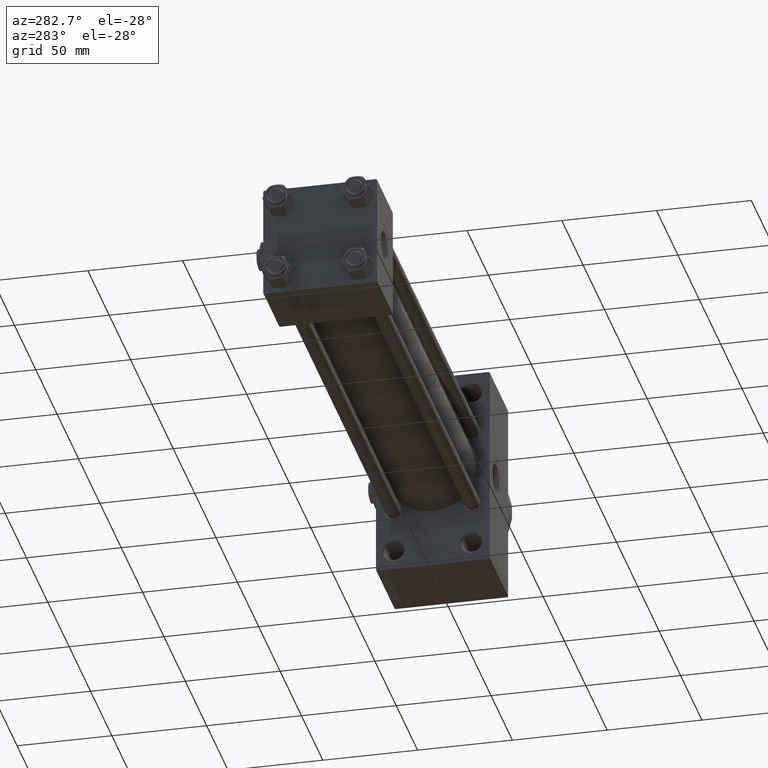
[diagram: clean part render]
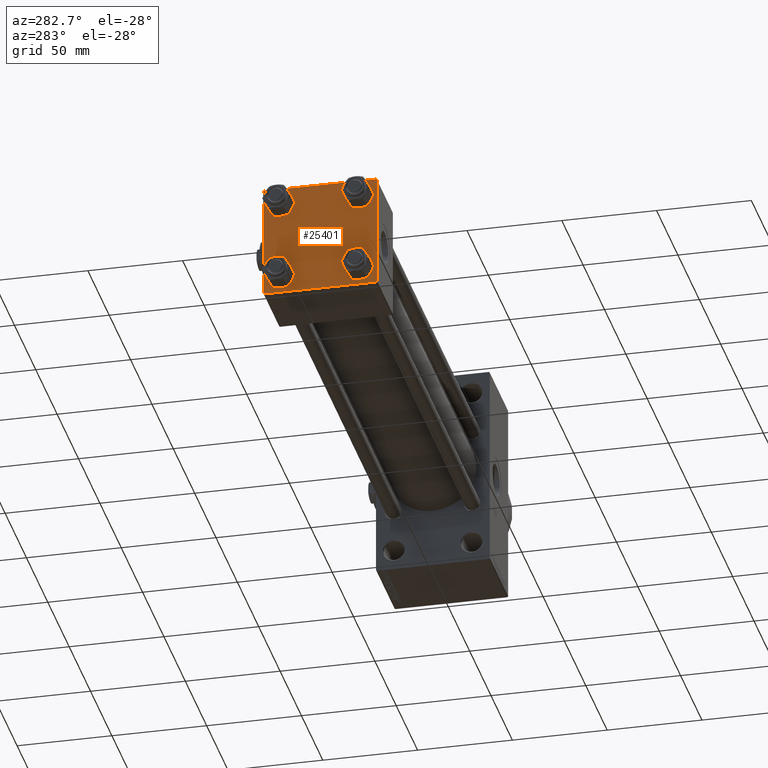
[diagram: same view with one face highlighted and labeled with its STEP entity id]
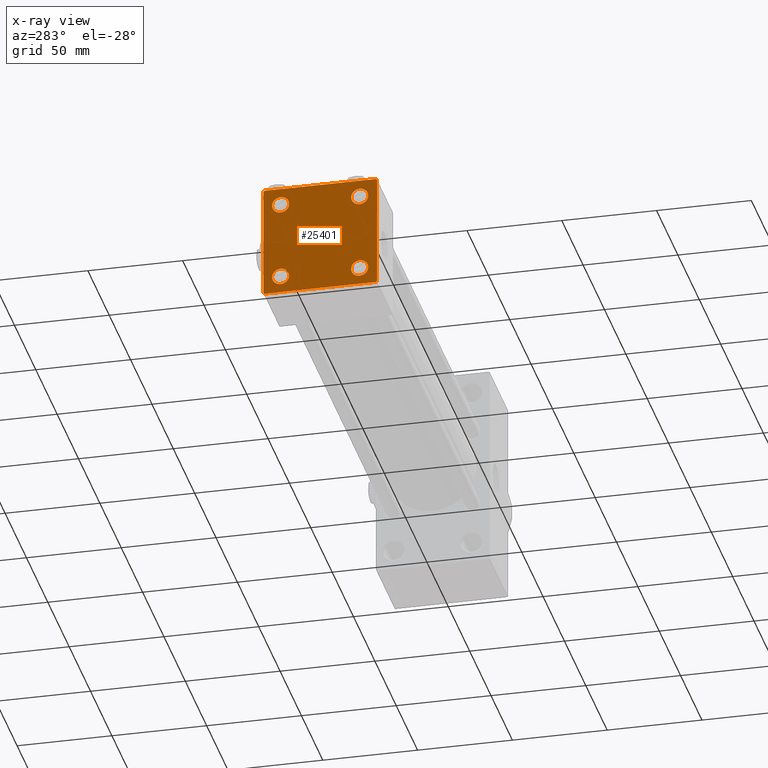
[diagram: x-ray of the same camera — body ghosted, the highlighted face saturated]
A machine part, auxiliary view. The second image highlights one B-rep face of the part: STEP entity #25401.
The next image is the same camera in x-ray: the body ghosted, the highlighted face saturated — about 0% of this face is hidden behind the body in this view.
In plain terms, the highlighted planar face has unit normal (-1, 0, 0).
Its self-contained STEP definition (entity closure, byte-faithful):
#550 = DIRECTION ( 'NONE',  ( 0.000000000000000000, 0.7071067811865474617, -0.7071067811865474617 ) ) ;
#685 = DIRECTION ( 'NONE',  ( 0.000000000000000000, 0.000000000000000000, 1.000000000000000000 ) ) ;
#1146 = DIRECTION ( 'NONE',  ( 1.000000000000000000, -0.000000000000000000, 0.000000000000000000 ) ) ;
#1232 = CARTESIAN_POINT ( 'NONE',  ( 0.000000000000000000, 29.49999999999997868, -30.00000000000000000 ) ) ;
#1278 = EDGE_CURVE ( 'NONE', #26328, #19455, #41671, .T. ) ;
#1809 = DIRECTION ( 'NONE',  ( -1.000000000000000000, 0.000000000000000000, -0.000000000000000000 ) ) ;
#2641 = AXIS2_PLACEMENT_3D ( 'NONE', #4152, #15868, #5134 ) ;
#2792 = LINE ( 'NONE', #18018, #32636 ) ;
#3107 = DIRECTION ( 'NONE',  ( 1.000000000000000000, -0.000000000000000000, 0.000000000000000000 ) ) ;
#3176 = LINE ( 'NONE', #10414, #41726 ) ;
#3518 = VERTEX_POINT ( 'NONE', #25609 ) ;
#4152 = CARTESIAN_POINT ( 'NONE',  ( 0.000000000000000000, -20.84999999999999076, -20.85000000000000497 ) ) ;
#4170 = AXIS2_PLACEMENT_3D ( 'NONE', #25385, #29866, #45062 ) ;
#4403 = EDGE_LOOP ( 'NONE', ( #20660, #16797 ) ) ;
#4476 = CARTESIAN_POINT ( 'NONE',  ( -0.000000000000000000, -29.74999999999999645, 29.74999999999999645 ) ) ;
#4502 = CARTESIAN_POINT ( 'NONE',  ( 0.000000000000000000, 29.49999999999999289, 30.00000000000000000 ) ) ;
#4646 = EDGE_LOOP ( 'NONE', ( #37601, #30730 ) ) ;
#5134 = DIRECTION ( 'NONE',  ( 0.000000000000000000, 0.000000000000000000, 1.000000000000000000 ) ) ;
#5799 = CARTESIAN_POINT ( 'NONE',  ( 0.000000000000000000, -29.50000000000000000, -30.00000000000000711 ) ) ;
#6040 = EDGE_CURVE ( 'NONE', #34753, #33175, #34418, .T. ) ;
#6044 = LINE ( 'NONE', #39717, #8180 ) ;
#6138 = ORIENTED_EDGE ( 'NONE', *, *, #13153, .F. ) ;
#6188 = AXIS2_PLACEMENT_3D ( 'NONE', #22989, #22256, #37473 ) ;
#6557 = CIRCLE ( 'NONE', #4170, 4.500000000000017764 ) ;
#6709 = AXIS2_PLACEMENT_3D ( 'NONE', #40590, #48805, #14661 ) ;
#7130 = ORIENTED_EDGE ( 'NONE', *, *, #46630, .T. ) ;
#7718 = VERTEX_POINT ( 'NONE', #45365 ) ;
#8131 = DIRECTION ( 'NONE',  ( 0.000000000000000000, 0.000000000000000000, 1.000000000000000000 ) ) ;
#8180 = VECTOR ( 'NONE', #32481, 1000.000000000000000 ) ;
#8182 = CARTESIAN_POINT ( 'NONE',  ( 0.000000000000000000, -30.00000000000000000, 29.49999999999999289 ) ) ;
#8534 = PLANE ( 'NONE',  #31089 ) ;
#8624 = VERTEX_POINT ( 'NONE', #4502 ) ;
#8773 = FACE_BOUND ( 'NONE', #4403, .T. ) ;
#9140 = CARTESIAN_POINT ( 'NONE',  ( 0.000000000000000000, 20.84999999999999787, 20.85000000000000142 ) ) ;
#9166 = VECTOR ( 'NONE', #12451, 1000.000000000000114 ) ;
#9526 = FACE_BOUND ( 'NONE', #35846, .T. ) ;
#9920 = CIRCLE ( 'NONE', #47371, 4.500000000000017764 ) ;
#10037 = EDGE_CURVE ( 'NONE', #34172, #7718, #6557, .T. ) ;
#10414 = CARTESIAN_POINT ( 'NONE',  ( 0.000000000000000000, -30.00000000000000000, 29.99999999999999289 ) ) ;
#10511 = EDGE_CURVE ( 'NONE', #8624, #18410, #12248, .T. ) ;
#11000 = DIRECTION ( 'NONE',  ( 0.000000000000000000, -0.7071067811865474617, 0.7071067811865474617 ) ) ;
#11239 = CARTESIAN_POINT ( 'NONE',  ( 0.000000000000000000, 29.99999999999999289, 29.50000000000000000 ) ) ;
#11355 = ORIENTED_EDGE ( 'NONE', *, *, #43964, .T. ) ;
#11502 = CARTESIAN_POINT ( 'NONE',  ( 0.000000000000000000, -29.75000000000001066, -29.75000000000001066 ) ) ;
#11528 = CARTESIAN_POINT ( 'NONE',  ( 0.000000000000000000, 29.74999999999999645, 29.74999999999999645 ) ) ;
#11775 = EDGE_CURVE ( 'NONE', #8624, #23575, #43397, .T. ) ;
#12120 = CARTESIAN_POINT ( 'NONE',  ( 0.000000000000000000, -20.84999999999999076, 20.85000000000000497 ) ) ;
#12248 = LINE ( 'NONE', #11528, #24076 ) ;
#12362 = LINE ( 'NONE', #47523, #28359 ) ;
#12451 = DIRECTION ( 'NONE',  ( -0.000000000000000000, 0.7071067811865474617, 0.7071067811865474617 ) ) ;
#12871 = VERTEX_POINT ( 'NONE', #14219 ) ;
#13153 = EDGE_CURVE ( 'NONE', #20620, #19455, #3176, .T. ) ;
#13542 = VECTOR ( 'NONE', #11000, 1000.000000000000114 ) ;
#14219 = CARTESIAN_POINT ( 'NONE',  ( 0.000000000000000000, 20.84999999999999787, 25.35000000000001918 ) ) ;
#14246 = CARTESIAN_POINT ( 'NONE',  ( 0.000000000000000000, -30.00000000000000000, -29.50000000000001776 ) ) ;
#14661 = DIRECTION ( 'NONE',  ( 0.000000000000000000, 0.000000000000000000, 1.000000000000000000 ) ) ;
#15022 = EDGE_LOOP ( 'NONE', ( #31829, #42260 ) ) ;
#15868 = DIRECTION ( 'NONE',  ( 1.000000000000000000, -0.000000000000000000, 0.000000000000000000 ) ) ;
#16797 = ORIENTED_EDGE ( 'NONE', *, *, #44581, .T. ) ;
#17027 = CARTESIAN_POINT ( 'NONE',  ( 0.000000000000000000, 0.000000000000000000, 0.000000000000000000 ) ) ;
#17367 = DIRECTION ( 'NONE',  ( 0.000000000000000000, 0.000000000000000000, 1.000000000000000000 ) ) ;
#17466 = DIRECTION ( 'NONE',  ( 0.000000000000000000, -1.000000000000000000, -1.156482317317871725E-16 ) ) ;
#17653 = CARTESIAN_POINT ( 'NONE',  ( 0.000000000000000000, -29.49999999999998579, 29.99999999999999289 ) ) ;
#18018 = CARTESIAN_POINT ( 'NONE',  ( 0.000000000000000000, 29.99999999999999289, -30.00000000000000000 ) ) ;
#18326 = DIRECTION ( 'NONE',  ( 0.000000000000000000, 0.000000000000000000, 1.000000000000000000 ) ) ;
#18410 = VERTEX_POINT ( 'NONE', #11239 ) ;
#19455 = VERTEX_POINT ( 'NONE', #14246 ) ;
#20620 = VERTEX_POINT ( 'NONE', #8182 ) ;
#20660 = ORIENTED_EDGE ( 'NONE', *, *, #6040, .T. ) ;
#20855 = EDGE_LOOP ( 'NONE', ( #7130, #11355, #21233, #48439, #6138, #26142, #33757, #38368 ) ) ;
#21233 = ORIENTED_EDGE ( 'NONE', *, *, #25644, .T. ) ;
#21449 = CARTESIAN_POINT ( 'NONE',  ( 0.000000000000000000, 29.99999999999999289, 30.00000000000000000 ) ) ;
#22256 = DIRECTION ( 'NONE',  ( 1.000000000000000000, -0.000000000000000000, 0.000000000000000000 ) ) ;
#22848 = CARTESIAN_POINT ( 'NONE',  ( 0.000000000000000000, 20.84999999999999787, -25.35000000000001918 ) ) ;
#22989 = CARTESIAN_POINT ( 'NONE',  ( 0.000000000000000000, 20.84999999999999787, -20.85000000000000142 ) ) ;
#23329 = VECTOR ( 'NONE', #17466, 1000.000000000000000 ) ;
#23575 = VERTEX_POINT ( 'NONE', #17653 ) ;
#23671 = VERTEX_POINT ( 'NONE', #44805 ) ;
#23755 = DIRECTION ( 'NONE',  ( -0.000000000000000000, 0.000000000000000000, 1.000000000000000000 ) ) ;
#23827 = EDGE_CURVE ( 'NONE', #7718, #34172, #37452, .T. ) ;
#24076 = VECTOR ( 'NONE', #550, 1000.000000000000114 ) ;
#24749 = FACE_BOUND ( 'NONE', #4646, .T. ) ;
#25027 = ORIENTED_EDGE ( 'NONE', *, *, #37648, .T. ) ;
#25385 = CARTESIAN_POINT ( 'NONE',  ( 0.000000000000000000, -20.84999999999999076, 20.85000000000000497 ) ) ;
#25401 = ADVANCED_FACE ( 'NONE', ( #27984, #24749, #8773, #9526, #42693 ), #8534, .T. ) ;
#25580 = CARTESIAN_POINT ( 'NONE',  ( 0.000000000000000000, 20.84999999999999787, -16.34999999999998366 ) ) ;
#25609 = CARTESIAN_POINT ( 'NONE',  ( 0.000000000000000000, 20.84999999999999787, 16.34999999999998366 ) ) ;
#25644 = EDGE_CURVE ( 'NONE', #38184, #26328, #2792, .T. ) ;
#25656 = AXIS2_PLACEMENT_3D ( 'NONE', #29546, #3107, #18326 ) ;
#26142 = ORIENTED_EDGE ( 'NONE', *, *, #38174, .T. ) ;
#26328 = VERTEX_POINT ( 'NONE', #5799 ) ;
#27125 = CARTESIAN_POINT ( 'NONE',  ( 0.000000000000000000, 20.84999999999999787, 20.85000000000000142 ) ) ;
#27984 = FACE_BOUND ( 'NONE', #15022, .T. ) ;
#27989 = AXIS2_PLACEMENT_3D ( 'NONE', #27125, #42320, #685 ) ;
#28359 = VECTOR ( 'NONE', #46767, 999.9999999999998863 ) ;
#29546 = CARTESIAN_POINT ( 'NONE',  ( 0.000000000000000000, 20.84999999999999787, -20.85000000000000142 ) ) ;
#29866 = DIRECTION ( 'NONE',  ( 1.000000000000000000, -0.000000000000000000, 0.000000000000000000 ) ) ;
#30001 = CARTESIAN_POINT ( 'NONE',  ( 0.000000000000000000, -20.84999999999999076, 16.34999999999998721 ) ) ;
#30352 = EDGE_CURVE ( 'NONE', #3518, #12871, #36770, .T. ) ;
#30604 = CIRCLE ( 'NONE', #6709, 4.500000000000017764 ) ;
#30730 = ORIENTED_EDGE ( 'NONE', *, *, #36643, .T. ) ;
#30912 = LINE ( 'NONE', #4476, #9166 ) ;
#31089 = AXIS2_PLACEMENT_3D ( 'NONE', #17027, #1809, #23755 ) ;
#31829 = ORIENTED_EDGE ( 'NONE', *, *, #23827, .T. ) ;
#32481 = DIRECTION ( 'NONE',  ( 0.000000000000000000, 0.000000000000000000, -1.000000000000000000 ) ) ;
#32636 = VECTOR ( 'NONE', #33215, 1000.000000000000000 ) ;
#33175 = VERTEX_POINT ( 'NONE', #22848 ) ;
#33215 = DIRECTION ( 'NONE',  ( 0.000000000000000000, -1.000000000000000000, -1.156482317317871725E-16 ) ) ;
#33363 = DIRECTION ( 'NONE',  ( 0.000000000000000000, 0.000000000000000000, -1.000000000000000000 ) ) ;
#33725 = CIRCLE ( 'NONE', #2641, 4.500000000000017764 ) ;
#33757 = ORIENTED_EDGE ( 'NONE', *, *, #11775, .F. ) ;
#34172 = VERTEX_POINT ( 'NONE', #30001 ) ;
#34418 = CIRCLE ( 'NONE', #25656, 4.500000000000017764 ) ;
#34753 = VERTEX_POINT ( 'NONE', #25580 ) ;
#35846 = EDGE_LOOP ( 'NONE', ( #25027, #49163 ) ) ;
#36463 = CIRCLE ( 'NONE', #6188, 4.500000000000017764 ) ;
#36643 = EDGE_CURVE ( 'NONE', #37513, #23671, #30604, .T. ) ;
#36770 = CIRCLE ( 'NONE', #27989, 4.500000000000017764 ) ;
#37452 = CIRCLE ( 'NONE', #39826, 4.500000000000017764 ) ;
#37473 = DIRECTION ( 'NONE',  ( 0.000000000000000000, 0.000000000000000000, 1.000000000000000000 ) ) ;
#37513 = VERTEX_POINT ( 'NONE', #41829 ) ;
#37601 = ORIENTED_EDGE ( 'NONE', *, *, #47824, .T. ) ;
#37648 = EDGE_CURVE ( 'NONE', #12871, #3518, #9920, .T. ) ;
#38174 = EDGE_CURVE ( 'NONE', #20620, #23575, #30912, .T. ) ;
#38184 = VERTEX_POINT ( 'NONE', #1232 ) ;
#38271 = VERTEX_POINT ( 'NONE', #42129 ) ;
#38368 = ORIENTED_EDGE ( 'NONE', *, *, #10511, .T. ) ;
#39717 = CARTESIAN_POINT ( 'NONE',  ( 0.000000000000000000, 29.99999999999999289, 30.00000000000000000 ) ) ;
#39826 = AXIS2_PLACEMENT_3D ( 'NONE', #12120, #1146, #8131 ) ;
#40590 = CARTESIAN_POINT ( 'NONE',  ( 0.000000000000000000, -20.84999999999999076, -20.85000000000000497 ) ) ;
#41671 = LINE ( 'NONE', #11502, #13542 ) ;
#41726 = VECTOR ( 'NONE', #33363, 1000.000000000000000 ) ;
#41829 = CARTESIAN_POINT ( 'NONE',  ( 0.000000000000000000, -20.84999999999999076, -25.35000000000002274 ) ) ;
#42129 = CARTESIAN_POINT ( 'NONE',  ( 0.000000000000000000, 29.99999999999999289, -29.50000000000000000 ) ) ;
#42260 = ORIENTED_EDGE ( 'NONE', *, *, #10037, .T. ) ;
#42320 = DIRECTION ( 'NONE',  ( 1.000000000000000000, -0.000000000000000000, 0.000000000000000000 ) ) ;
#42693 = FACE_OUTER_BOUND ( 'NONE', #20855, .T. ) ;
#43397 = LINE ( 'NONE', #21449, #23329 ) ;
#43964 = EDGE_CURVE ( 'NONE', #38271, #38184, #12362, .T. ) ;
#44581 = EDGE_CURVE ( 'NONE', #33175, #34753, #36463, .T. ) ;
#44805 = CARTESIAN_POINT ( 'NONE',  ( 0.000000000000000000, -20.84999999999999076, -16.34999999999998721 ) ) ;
#45062 = DIRECTION ( 'NONE',  ( 0.000000000000000000, 0.000000000000000000, 1.000000000000000000 ) ) ;
#45365 = CARTESIAN_POINT ( 'NONE',  ( 0.000000000000000000, -20.84999999999999076, 25.35000000000002274 ) ) ;
#46630 = EDGE_CURVE ( 'NONE', #18410, #38271, #6044, .T. ) ;
#46767 = DIRECTION ( 'NONE',  ( -0.000000000000000000, -0.7071067811865574537, -0.7071067811865376918 ) ) ;
#47291 = DIRECTION ( 'NONE',  ( 1.000000000000000000, -0.000000000000000000, 0.000000000000000000 ) ) ;
#47371 = AXIS2_PLACEMENT_3D ( 'NONE', #9140, #47291, #17367 ) ;
#47523 = CARTESIAN_POINT ( 'NONE',  ( 0.000000000000000000, 29.74999999999957723, -29.75000000000040501 ) ) ;
#47824 = EDGE_CURVE ( 'NONE', #23671, #37513, #33725, .T. ) ;
#48439 = ORIENTED_EDGE ( 'NONE', *, *, #1278, .T. ) ;
#48805 = DIRECTION ( 'NONE',  ( 1.000000000000000000, -0.000000000000000000, 0.000000000000000000 ) ) ;
#49163 = ORIENTED_EDGE ( 'NONE', *, *, #30352, .T. ) ;